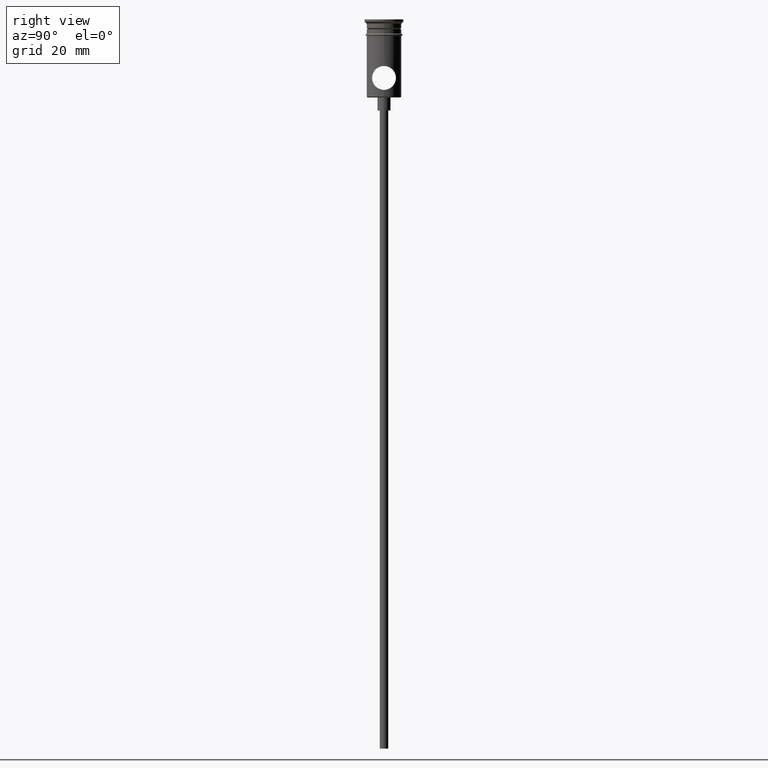
[diagram: clean part render]
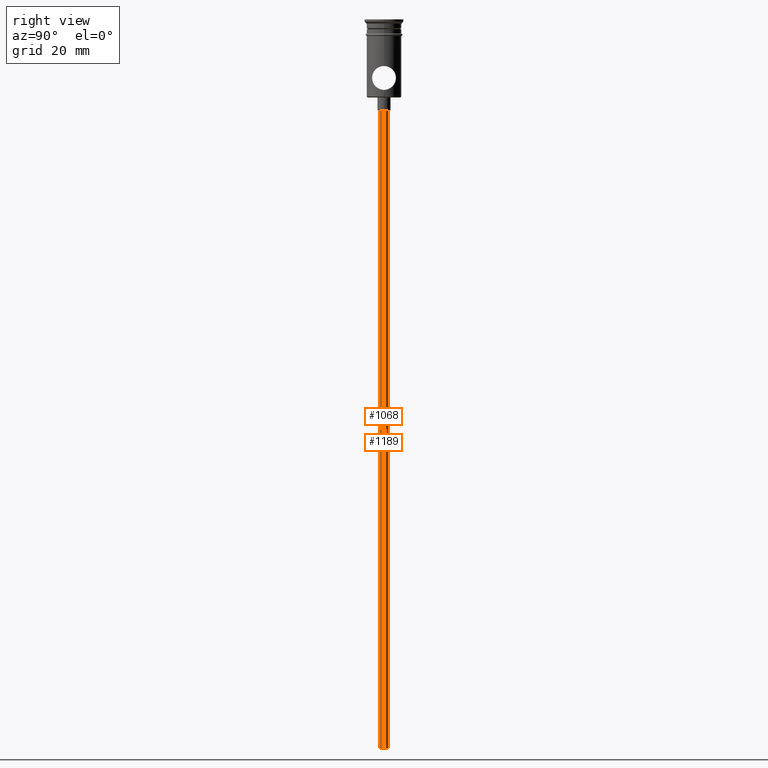
[diagram: same view with one multi-face feature highlighted, each face labeled with its STEP entity id]
A machine part, right view. The highlighted faces form ONE feature: a constant-radius fillet chain: 2 tangent blend faces with common blend radius 1 mm. The faces share edges in the B-rep.
Their STEP definitions:
[1] entity #1068 (Cylinder):
#40 = VECTOR ( 'NONE', #358, 1000.000000000000000 ) ;
#46 = DIRECTION ( 'NONE',  ( -1.000000000000000000, 0.000000000000000000, 0.000000000000000000 ) ) ;
#95 = DIRECTION ( 'NONE',  ( -0.000000000000000000, -0.000000000000000000, 1.000000000000000000 ) ) ;
#98 = ORIENTED_EDGE ( 'NONE', *, *, #905, .F. ) ;
#115 = CARTESIAN_POINT ( 'NONE',  ( -0.9999999999999997780, 1.224646799147352961E-16, -167.9999999999999716 ) ) ;
#211 = CARTESIAN_POINT ( 'NONE',  ( -0.9999999999999997780, 1.224646799147352961E-16, -167.9999999999999716 ) ) ;
#274 = CYLINDRICAL_SURFACE ( 'NONE', #325, 0.9999999999999997780 ) ;
#325 = AXIS2_PLACEMENT_3D ( 'NONE', #407, #1035, #832 ) ;
#329 = ORIENTED_EDGE ( 'NONE', *, *, #580, .F. ) ;
#358 = DIRECTION ( 'NONE',  ( -0.000000000000000000, -0.000000000000000000, 1.000000000000000000 ) ) ;
#390 = EDGE_CURVE ( 'NONE', #1228, #544, #932, .T. ) ;
#407 = CARTESIAN_POINT ( 'NONE',  ( 0.000000000000000000, 0.000000000000000000, -167.9999999999999716 ) ) ;
#443 = AXIS2_PLACEMENT_3D ( 'NONE', #1203, #1237, #46 ) ;
#515 = ORIENTED_EDGE ( 'NONE', *, *, #1110, .T. ) ;
#544 = VERTEX_POINT ( 'NONE', #1335 ) ;
#574 = VERTEX_POINT ( 'NONE', #775 ) ;
#580 = EDGE_CURVE ( 'NONE', #574, #1147, #808, .T. ) ;
#615 = DIRECTION ( 'NONE',  ( 0.000000000000000000, 0.000000000000000000, -1.000000000000000000 ) ) ;
#712 = ORIENTED_EDGE ( 'NONE', *, *, #390, .T. ) ;
#775 = CARTESIAN_POINT ( 'NONE',  ( 0.9999999999999997780, 0.000000000000000000, -167.9999999999999716 ) ) ;
#808 = CIRCLE ( 'NONE', #443, 0.9999999999999997780 ) ;
#814 = LINE ( 'NONE', #115, #40 ) ;
#830 = CARTESIAN_POINT ( 'NONE',  ( 0.000000000000000000, 0.000000000000000000, -20.99999999999999645 ) ) ;
#832 = DIRECTION ( 'NONE',  ( 1.000000000000000000, 0.000000000000000000, 0.000000000000000000 ) ) ;
#846 = AXIS2_PLACEMENT_3D ( 'NONE', #830, #615, #1339 ) ;
#850 = CARTESIAN_POINT ( 'NONE',  ( 0.9999999999999997780, 0.000000000000000000, -167.9999999999999716 ) ) ;
#905 = EDGE_CURVE ( 'NONE', #1147, #544, #814, .T. ) ;
#932 = CIRCLE ( 'NONE', #846, 0.9999999999999997780 ) ;
#1035 = DIRECTION ( 'NONE',  ( -0.000000000000000000, -0.000000000000000000, 1.000000000000000000 ) ) ;
#1068 = ADVANCED_FACE ( 'NONE', ( #1373 ), #274, .T. ) ;
#1094 = CARTESIAN_POINT ( 'NONE',  ( 0.9999999999999997780, 0.000000000000000000, -20.99999999999999645 ) ) ;
#1110 = EDGE_CURVE ( 'NONE', #574, #1228, #1180, .T. ) ;
#1147 = VERTEX_POINT ( 'NONE', #211 ) ;
#1180 = LINE ( 'NONE', #850, #1350 ) ;
#1203 = CARTESIAN_POINT ( 'NONE',  ( 0.000000000000000000, 0.000000000000000000, -167.9999999999999716 ) ) ;
#1228 = VERTEX_POINT ( 'NONE', #1094 ) ;
#1237 = DIRECTION ( 'NONE',  ( 0.000000000000000000, 0.000000000000000000, -1.000000000000000000 ) ) ;
#1335 = CARTESIAN_POINT ( 'NONE',  ( -0.9999999999999997780, 1.224646799147352961E-16, -20.99999999999999645 ) ) ;
#1339 = DIRECTION ( 'NONE',  ( -1.000000000000000000, 0.000000000000000000, 0.000000000000000000 ) ) ;
#1350 = VECTOR ( 'NONE', #95, 1000.000000000000000 ) ;
#1372 = EDGE_LOOP ( 'NONE', ( #98, #329, #515, #712 ) ) ;
#1373 = FACE_OUTER_BOUND ( 'NONE', #1372, .T. ) ;
[2] entity #1189 (Cylinder):
#33 = DIRECTION ( 'NONE',  ( 0.000000000000000000, 0.000000000000000000, -1.000000000000000000 ) ) ;
#40 = VECTOR ( 'NONE', #358, 1000.000000000000000 ) ;
#61 = ORIENTED_EDGE ( 'NONE', *, *, #1415, .T. ) ;
#77 = DIRECTION ( 'NONE',  ( -0.000000000000000000, -0.000000000000000000, 1.000000000000000000 ) ) ;
#95 = DIRECTION ( 'NONE',  ( -0.000000000000000000, -0.000000000000000000, 1.000000000000000000 ) ) ;
#115 = CARTESIAN_POINT ( 'NONE',  ( -0.9999999999999997780, 1.224646799147352961E-16, -167.9999999999999716 ) ) ;
#143 = ORIENTED_EDGE ( 'NONE', *, *, #905, .T. ) ;
#187 = CYLINDRICAL_SURFACE ( 'NONE', #469, 0.9999999999999997780 ) ;
#211 = CARTESIAN_POINT ( 'NONE',  ( -0.9999999999999997780, 1.224646799147352961E-16, -167.9999999999999716 ) ) ;
#220 = FACE_OUTER_BOUND ( 'NONE', #740, .T. ) ;
#238 = CARTESIAN_POINT ( 'NONE',  ( 0.000000000000000000, 0.000000000000000000, -20.99999999999999645 ) ) ;
#250 = DIRECTION ( 'NONE',  ( -1.000000000000000000, 0.000000000000000000, 0.000000000000000000 ) ) ;
#260 = CIRCLE ( 'NONE', #1392, 0.9999999999999997780 ) ;
#264 = EDGE_CURVE ( 'NONE', #1147, #574, #441, .T. ) ;
#313 = CARTESIAN_POINT ( 'NONE',  ( 0.000000000000000000, 0.000000000000000000, -167.9999999999999716 ) ) ;
#358 = DIRECTION ( 'NONE',  ( -0.000000000000000000, -0.000000000000000000, 1.000000000000000000 ) ) ;
#441 = CIRCLE ( 'NONE', #825, 0.9999999999999997780 ) ;
#469 = AXIS2_PLACEMENT_3D ( 'NONE', #764, #77, #635 ) ;
#544 = VERTEX_POINT ( 'NONE', #1335 ) ;
#574 = VERTEX_POINT ( 'NONE', #775 ) ;
#635 = DIRECTION ( 'NONE',  ( 1.000000000000000000, 0.000000000000000000, 0.000000000000000000 ) ) ;
#675 = DIRECTION ( 'NONE',  ( 0.000000000000000000, 0.000000000000000000, -1.000000000000000000 ) ) ;
#709 = ORIENTED_EDGE ( 'NONE', *, *, #264, .F. ) ;
#740 = EDGE_LOOP ( 'NONE', ( #709, #143, #61, #941 ) ) ;
#764 = CARTESIAN_POINT ( 'NONE',  ( 0.000000000000000000, 0.000000000000000000, -167.9999999999999716 ) ) ;
#775 = CARTESIAN_POINT ( 'NONE',  ( 0.9999999999999997780, 0.000000000000000000, -167.9999999999999716 ) ) ;
#814 = LINE ( 'NONE', #115, #40 ) ;
#825 = AXIS2_PLACEMENT_3D ( 'NONE', #313, #675, #972 ) ;
#850 = CARTESIAN_POINT ( 'NONE',  ( 0.9999999999999997780, 0.000000000000000000, -167.9999999999999716 ) ) ;
#905 = EDGE_CURVE ( 'NONE', #1147, #544, #814, .T. ) ;
#941 = ORIENTED_EDGE ( 'NONE', *, *, #1110, .F. ) ;
#972 = DIRECTION ( 'NONE',  ( -1.000000000000000000, 0.000000000000000000, 0.000000000000000000 ) ) ;
#1094 = CARTESIAN_POINT ( 'NONE',  ( 0.9999999999999997780, 0.000000000000000000, -20.99999999999999645 ) ) ;
#1110 = EDGE_CURVE ( 'NONE', #574, #1228, #1180, .T. ) ;
#1147 = VERTEX_POINT ( 'NONE', #211 ) ;
#1180 = LINE ( 'NONE', #850, #1350 ) ;
#1189 = ADVANCED_FACE ( 'NONE', ( #220 ), #187, .T. ) ;
#1228 = VERTEX_POINT ( 'NONE', #1094 ) ;
#1335 = CARTESIAN_POINT ( 'NONE',  ( -0.9999999999999997780, 1.224646799147352961E-16, -20.99999999999999645 ) ) ;
#1350 = VECTOR ( 'NONE', #95, 1000.000000000000000 ) ;
#1392 = AXIS2_PLACEMENT_3D ( 'NONE', #238, #33, #250 ) ;
#1415 = EDGE_CURVE ( 'NONE', #544, #1228, #260, .T. ) ;